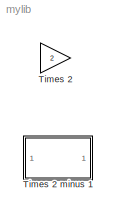
MODEL mylib
KIND library
BLOCK [Gain] Times 2
  Gain = 2
  OutDataType = fixdt(1, 16)
  OutDataTypeMode = Inherit via internal rule
  OutDataTypeStr = Inherit: Inherit via internal rule
  OutScaling = 2^0
  ParamDataTypeStr = Inherit: Inherit via internal rule
  ParameterDataType = fixdt(1, 16)
  ParameterDataTypeMode = Inherit via internal rule
  ParameterScaling = 2^0
  SaturateOnIntegerOverflow = off
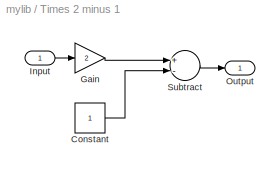
BLOCK [SubSystem] Times 2 minus 1
  FunctionWithSeparateData = off
  MaskHideContents = off
  MinAlgLoopOccurrences = off
  Opaque = off
  Ports = [1, 1]
  PropExecContextOutsideSubsystem = off
  RTWSystemCode = Auto
  RequestExecContextInheritance = off
BLOCK [Constant] Times 2 minus 1/Constant
  OutDataType = fixdt(1, 16)
  OutScaling = 2^0
BLOCK [Gain] Times 2 minus 1/Gain
  Gain = 2
  OutDataType = fixdt(1, 16)
  OutDataTypeMode = Inherit via internal rule
  OutDataTypeStr = Inherit: Inherit via internal rule
  OutScaling = 2^0
  ParamDataTypeStr = Inherit: Inherit via internal rule
  ParameterDataType = fixdt(1, 16)
  ParameterDataTypeMode = Inherit via internal rule
  ParameterScaling = 2^0
  SaturateOnIntegerOverflow = off
BLOCK [Inport] Times 2 minus 1/Input
  IconDisplay = Port number
BLOCK [Outport] Times 2 minus 1/Output
  IconDisplay = Port number
BLOCK [Sum] Times 2 minus 1/Subtract
  InputSameDT = off
  Inputs = +-
  OutDataType = fixdt(1, 16)
  OutDataTypeMode = Inherit via internal rule
  OutDataTypeStr = Inherit: Inherit via internal rule
  OutScaling = 2^-10
  Ports = [2, 1]
  SaturateOnIntegerOverflow = off
LINE Times 2 minus 1/Constant:1 -> Times 2 minus 1/Subtract:2
LINE Times 2 minus 1/Gain:1 -> Times 2 minus 1/Subtract:1
LINE Times 2 minus 1/Input:1 -> Times 2 minus 1/Gain:1
LINE Times 2 minus 1/Subtract:1 -> Times 2 minus 1/Output:1
